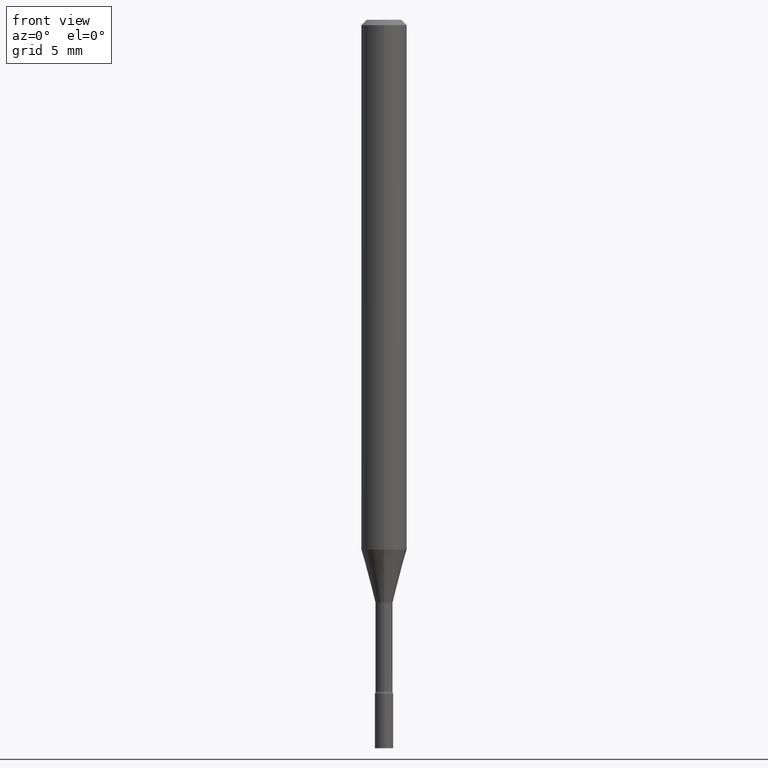
[diagram: clean part render]
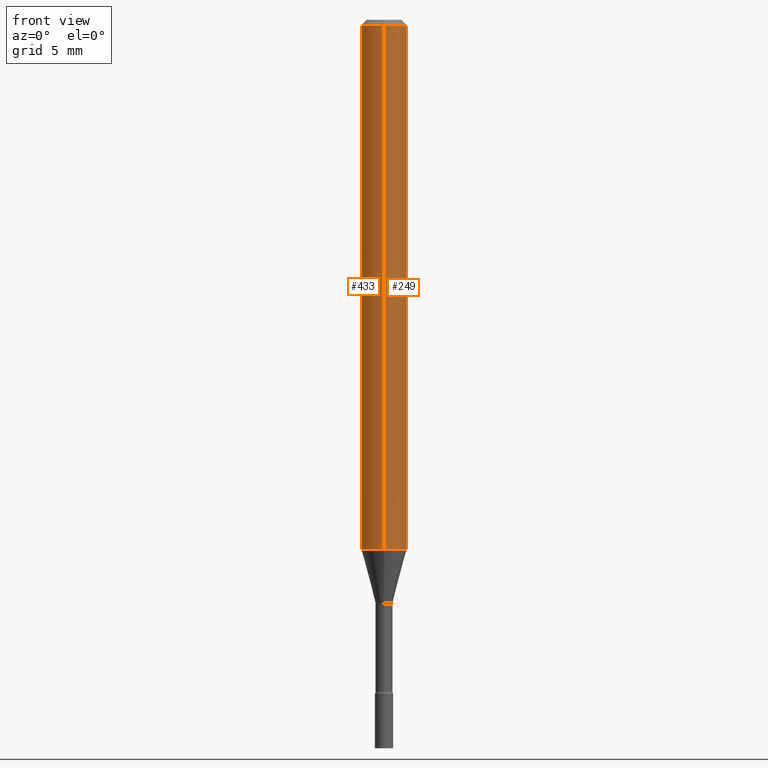
[diagram: same view with one multi-face feature highlighted, each face labeled with its STEP entity id]
A machine part, front view. The highlighted faces form ONE feature: a constant-radius fillet chain: 2 tangent blend faces with common blend radius 1.5875 mm. The faces share edges in the B-rep.
Their STEP definitions:
[1] entity #433 (Cylinder):
#2 = DIRECTION ( 'NONE',  ( -2.445515036906521826E-29, 3.491415133818832582E-15, 1.000000000000000000 ) ) ;
#23 = ORIENTED_EDGE ( 'NONE', *, *, #116, .T. ) ;
#26 = EDGE_CURVE ( 'NONE', #56, #309, #448, .T. ) ;
#33 = CARTESIAN_POINT ( 'NONE',  ( 3.668272555359789903E-31, -5.237122700728258955E-17, -0.01500000000000003067 ) ) ;
#43 = CARTESIAN_POINT ( 'NONE',  ( 4.440892098500625669E-16, 0.06250000000000000000, -2.182134458636770364E-16 ) ) ;
#56 = VERTEX_POINT ( 'NONE', #194 ) ;
#116 = EDGE_CURVE ( 'NONE', #219, #309, #199, .T. ) ;
#135 = ORIENTED_EDGE ( 'NONE', *, *, #237, .F. ) ;
#149 = DIRECTION ( 'NONE',  ( -6.982962677686265922E-15, -1.000000000000000000, 3.483106191921935554E-15 ) ) ;
#159 = DIRECTION ( 'NONE',  ( -2.445515036906521826E-29, 3.491415133818832582E-15, 1.000000000000000000 ) ) ;
#182 = FACE_OUTER_BOUND ( 'NONE', #307, .T. ) ;
#194 = CARTESIAN_POINT ( 'NONE',  ( 4.440892098500983121E-16, 0.06249999999999995143, -0.01500000000000024751 ) ) ;
#199 = LINE ( 'NONE', #359, #424 ) ;
#214 = AXIS2_PLACEMENT_3D ( 'NONE', #347, #302, #344 ) ;
#218 = CARTESIAN_POINT ( 'NONE',  ( -4.364351673553912750E-16, -0.06250000000000005551, -0.01499999999999981209 ) ) ;
#219 = VERTEX_POINT ( 'NONE', #324 ) ;
#236 = DIRECTION ( 'NONE',  ( -2.445515036906521826E-29, 3.491415133818832582E-15, 1.000000000000000000 ) ) ;
#237 = EDGE_CURVE ( 'NONE', #286, #56, #333, .T. ) ;
#255 = VECTOR ( 'NONE', #283, 39.37007874015748143 ) ;
#266 = CIRCLE ( 'NONE', #288, 0.06250000000000000000 ) ;
#283 = DIRECTION ( 'NONE',  ( -2.445515036906521826E-29, 3.491415133818832582E-15, 1.000000000000000000 ) ) ;
#286 = VERTEX_POINT ( 'NONE', #295 ) ;
#287 = AXIS2_PLACEMENT_3D ( 'NONE', #33, #236, #149 ) ;
#288 = AXIS2_PLACEMENT_3D ( 'NONE', #469, #159, #401 ) ;
#295 = CARTESIAN_POINT ( 'NONE',  ( 4.440892098500979177E-16, 0.06249999999999489991, -1.454450018504814368 ) ) ;
#302 = DIRECTION ( 'NONE',  ( -2.445515036906521826E-29, 3.491415133818832582E-15, 1.000000000000000000 ) ) ;
#307 = EDGE_LOOP ( 'NONE', ( #135, #439, #23, #447 ) ) ;
#309 = VERTEX_POINT ( 'NONE', #218 ) ;
#324 = CARTESIAN_POINT ( 'NONE',  ( -4.364351673553561707E-16, -0.06250000000000509315, -1.454450018504813924 ) ) ;
#333 = LINE ( 'NONE', #43, #255 ) ;
#342 = CYLINDRICAL_SURFACE ( 'NONE', #214, 0.06250000000000000000 ) ;
#344 = DIRECTION ( 'NONE',  ( -6.982962677686265922E-15, -1.000000000000000000, 3.491415133818832582E-15 ) ) ;
#347 = CARTESIAN_POINT ( 'NONE',  ( 0.000000000000000000, 0.000000000000000000, 0.000000000000000000 ) ) ;
#359 = CARTESIAN_POINT ( 'NONE',  ( -4.364351673553916201E-16, -0.06250000000000000000, 2.182134458636770364E-16 ) ) ;
#401 = DIRECTION ( 'NONE',  ( -6.982962677686265922E-15, -1.000000000000000000, 4.370956789862821150E-15 ) ) ;
#424 = VECTOR ( 'NONE', #2, 39.37007874015748143 ) ;
#433 = ADVANCED_FACE ( 'NONE', ( #182 ), #342, .T. ) ;
#439 = ORIENTED_EDGE ( 'NONE', *, *, #503, .T. ) ;
#447 = ORIENTED_EDGE ( 'NONE', *, *, #26, .F. ) ;
#448 = CIRCLE ( 'NONE', #287, 0.06250000000000000000 ) ;
#469 = CARTESIAN_POINT ( 'NONE',  ( 3.556879390682492586E-29, -5.078088805990789442E-15, -1.454450018504814146 ) ) ;
#503 = EDGE_CURVE ( 'NONE', #286, #219, #266, .T. ) ;
[2] entity #249 (Cylinder):
#2 = DIRECTION ( 'NONE',  ( -2.445515036906521826E-29, 3.491415133818832582E-15, 1.000000000000000000 ) ) ;
#12 = AXIS2_PLACEMENT_3D ( 'NONE', #122, #168, #284 ) ;
#34 = CIRCLE ( 'NONE', #482, 0.06250000000000000000 ) ;
#43 = CARTESIAN_POINT ( 'NONE',  ( 4.440892098500625669E-16, 0.06250000000000000000, -2.182134458636770364E-16 ) ) ;
#56 = VERTEX_POINT ( 'NONE', #194 ) ;
#116 = EDGE_CURVE ( 'NONE', #219, #309, #199, .T. ) ;
#122 = CARTESIAN_POINT ( 'NONE',  ( 0.000000000000000000, 0.000000000000000000, 0.000000000000000000 ) ) ;
#142 = EDGE_LOOP ( 'NONE', ( #197, #327, #146, #265 ) ) ;
#146 = ORIENTED_EDGE ( 'NONE', *, *, #148, .F. ) ;
#148 = EDGE_CURVE ( 'NONE', #309, #56, #167, .T. ) ;
#161 = DIRECTION ( 'NONE',  ( -2.445515036906521826E-29, 3.491415133818832582E-15, 1.000000000000000000 ) ) ;
#163 = FACE_OUTER_BOUND ( 'NONE', #142, .T. ) ;
#167 = CIRCLE ( 'NONE', #394, 0.06250000000000000000 ) ;
#168 = DIRECTION ( 'NONE',  ( -2.445515036906521826E-29, 3.491415133818832582E-15, 1.000000000000000000 ) ) ;
#194 = CARTESIAN_POINT ( 'NONE',  ( 4.440892098500983121E-16, 0.06249999999999995143, -0.01500000000000024751 ) ) ;
#197 = ORIENTED_EDGE ( 'NONE', *, *, #516, .T. ) ;
#199 = LINE ( 'NONE', #359, #424 ) ;
#218 = CARTESIAN_POINT ( 'NONE',  ( -4.364351673553912750E-16, -0.06250000000000005551, -0.01499999999999981209 ) ) ;
#219 = VERTEX_POINT ( 'NONE', #324 ) ;
#237 = EDGE_CURVE ( 'NONE', #286, #56, #333, .T. ) ;
#244 = CARTESIAN_POINT ( 'NONE',  ( 3.668272555359789903E-31, -5.237122700728258955E-17, -0.01500000000000003067 ) ) ;
#249 = ADVANCED_FACE ( 'NONE', ( #163 ), #444, .T. ) ;
#255 = VECTOR ( 'NONE', #283, 39.37007874015748143 ) ;
#265 = ORIENTED_EDGE ( 'NONE', *, *, #116, .F. ) ;
#283 = DIRECTION ( 'NONE',  ( -2.445515036906521826E-29, 3.491415133818832582E-15, 1.000000000000000000 ) ) ;
#284 = DIRECTION ( 'NONE',  ( -6.982962677686265922E-15, -1.000000000000000000, 3.491415133818832582E-15 ) ) ;
#286 = VERTEX_POINT ( 'NONE', #295 ) ;
#295 = CARTESIAN_POINT ( 'NONE',  ( 4.440892098500979177E-16, 0.06249999999999489991, -1.454450018504814368 ) ) ;
#309 = VERTEX_POINT ( 'NONE', #218 ) ;
#320 = DIRECTION ( 'NONE',  ( -6.982962677686265922E-15, -1.000000000000000000, 4.370956789862821150E-15 ) ) ;
#324 = CARTESIAN_POINT ( 'NONE',  ( -4.364351673553561707E-16, -0.06250000000000509315, -1.454450018504813924 ) ) ;
#327 = ORIENTED_EDGE ( 'NONE', *, *, #237, .T. ) ;
#333 = LINE ( 'NONE', #43, #255 ) ;
#359 = CARTESIAN_POINT ( 'NONE',  ( -4.364351673553916201E-16, -0.06250000000000000000, 2.182134458636770364E-16 ) ) ;
#369 = DIRECTION ( 'NONE',  ( -6.982962677686265922E-15, -1.000000000000000000, 3.483106191921935554E-15 ) ) ;
#394 = AXIS2_PLACEMENT_3D ( 'NONE', #244, #161, #369 ) ;
#424 = VECTOR ( 'NONE', #2, 39.37007874015748143 ) ;
#429 = CARTESIAN_POINT ( 'NONE',  ( 3.556879390682492586E-29, -5.078088805990789442E-15, -1.454450018504814146 ) ) ;
#444 = CYLINDRICAL_SURFACE ( 'NONE', #12, 0.06250000000000000000 ) ;
#482 = AXIS2_PLACEMENT_3D ( 'NONE', #429, #483, #320 ) ;
#483 = DIRECTION ( 'NONE',  ( -2.445515036906521826E-29, 3.491415133818832582E-15, 1.000000000000000000 ) ) ;
#516 = EDGE_CURVE ( 'NONE', #219, #286, #34, .T. ) ;